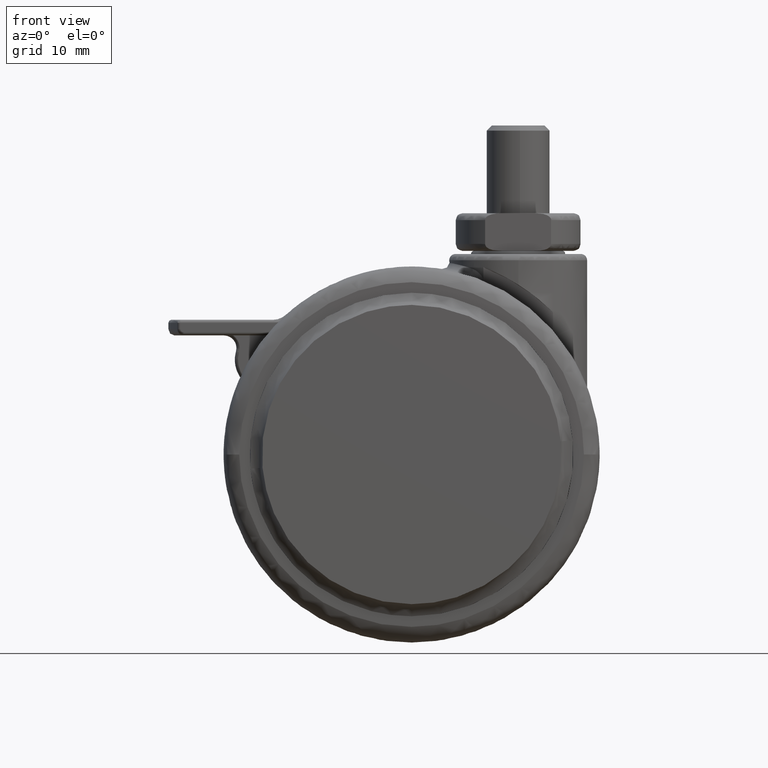
[diagram: clean part render]
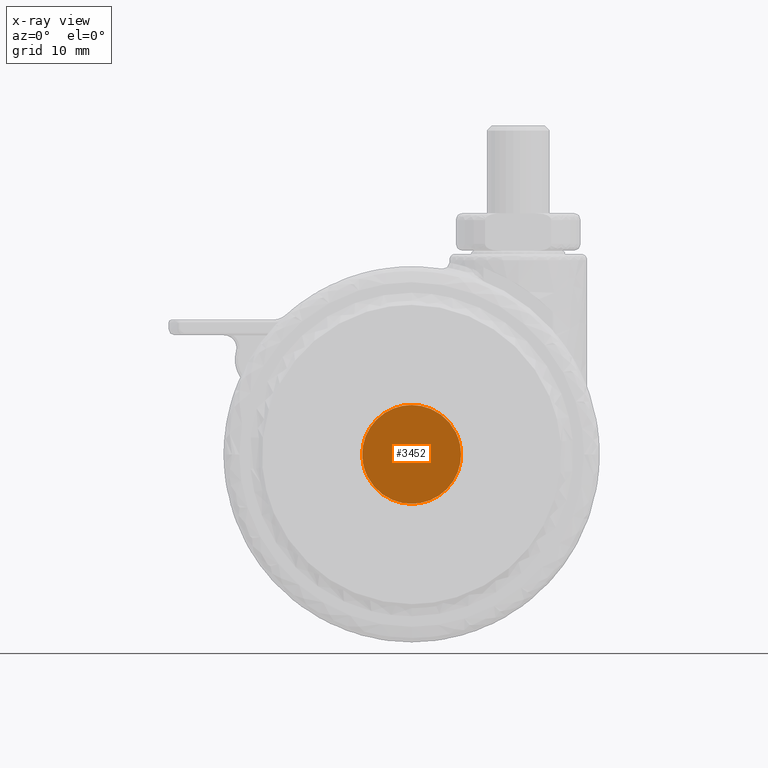
[diagram: x-ray — body ghosted, one internal face saturated and labeled with its STEP entity id]
A machine part, front view, then the same camera in x-ray: the body is ghosted and one INTERNAL B-rep face — a face not visible from any outside direction — is saturated and labeled: STEP entity #3452.
In plain terms, the highlighted face is a freeform B-spline surface patch.
Its self-contained STEP definition (entity closure, byte-faithful):
#3381=CARTESIAN_POINT('',(8.668936951341076,8.499999999999998,8.669374385220493));
#3382=CARTESIAN_POINT('',(8.668936951341076,8.499999999999998,-8.669374808042097));
#3383=CARTESIAN_POINT('',(-8.668936388123894,8.500000000000002,8.669374385220493));
#3384=CARTESIAN_POINT('',(-8.668936388123894,8.500000000000002,-8.669374808042097));
#3385=B_SPLINE_SURFACE_WITH_KNOTS('',1,1,((#3381,#3383),(#3382,#3384)),.UNSPECIFIED.,.F.,.F.,.U.,(2,2),(2,2),(0.0,17.338749193262590),(0.0,17.337873339464970),.UNSPECIFIED.);
#3386=CARTESIAN_POINT('',(1.040915E-015,8.500000000000000,-7.881966011250159));
#3387=VERTEX_POINT('',#3386);
#3388=CARTESIAN_POINT('',(7.045227729191132,8.500000000000000,3.534141271733713));
#3389=VERTEX_POINT('',#3388);
#3390=CARTESIAN_POINT('',(1.040915E-015,8.500000000000000,-7.881966011250159));
#3391=CARTESIAN_POINT('',(7.881966012688912,8.499999999999998,-7.881966010528427));
#3392=CARTESIAN_POINT('',(7.881966015020272,8.500000000000000,1.891226E-009));
#3393=CARTESIAN_POINT('',(7.881966015572239,8.500000000000000,1.866123123325072));
#3394=CARTESIAN_POINT('',(7.045227729191132,8.500000000000000,3.534141271733713));
#3402=(BOUNDED_CURVE()B_SPLINE_CURVE(2,(#3390,#3391,#3392,#3393,#3394),.UNSPECIFIED.,.F.,.U.)B_SPLINE_CURVE_WITH_KNOTS((3,2,3),(0.0,0.250000000000000,0.326230937887741),.UNSPECIFIED.)CURVE()GEOMETRIC_REPRESENTATION_ITEM()RATIONAL_B_SPLINE_CURVE((1.0,0.707106781186548,1.0,0.910689900915565,0.875845342759558))REPRESENTATION_ITEM(''));
#3403=EDGE_CURVE('',#3387,#3389,#3402,.T.);
#3404=ORIENTED_EDGE('',*,*,#3403,.T.);
#3405=CARTESIAN_POINT('',(1.040915E-015,8.500000000000000,7.881966011250159));
#3406=VERTEX_POINT('',#3405);
#3407=CARTESIAN_POINT('',(7.045227729191132,8.500000000000000,3.534141271733713));
#3408=CARTESIAN_POINT('',(4.864201441678153,8.500000000000004,7.881966012419653));
#3409=CARTESIAN_POINT('',(1.040915E-015,8.500000000000000,7.881966011250159));
#3417=(BOUNDED_CURVE()B_SPLINE_CURVE(2,(#3407,#3408,#3409),.UNSPECIFIED.,.F.,.U.)B_SPLINE_CURVE_WITH_KNOTS((3,3),(0.326230937887741,0.500000000000000),.UNSPECIFIED.)CURVE()GEOMETRIC_REPRESENTATION_ITEM()RATIONAL_B_SPLINE_CURVE((0.875845342759558,0.796416880270982,1.0))REPRESENTATION_ITEM(''));
#3418=EDGE_CURVE('',#3389,#3406,#3417,.T.);
#3419=ORIENTED_EDGE('',*,*,#3418,.T.);
#3420=CARTESIAN_POINT('',(-7.045227729191130,8.500000000000000,-3.534141271733715));
#3421=VERTEX_POINT('',#3420);
#3422=CARTESIAN_POINT('',(1.040915E-015,8.500000000000000,7.881966011250159));
#3423=CARTESIAN_POINT('',(-7.881966012688912,8.500000000000002,7.881966010528429));
#3424=CARTESIAN_POINT('',(-7.881966015020272,8.500000000000002,-1.891224E-009));
#3425=CARTESIAN_POINT('',(-7.881966015572242,8.500000000000002,-1.866123123325072));
#3426=CARTESIAN_POINT('',(-7.045227729191130,8.500000000000000,-3.534141271733715));
#3434=(BOUNDED_CURVE()B_SPLINE_CURVE(2,(#3422,#3423,#3424,#3425,#3426),.UNSPECIFIED.,.F.,.U.)B_SPLINE_CURVE_WITH_KNOTS((3,2,3),(0.500000000000000,0.750000000000000,0.826230937887741),.UNSPECIFIED.)CURVE()GEOMETRIC_REPRESENTATION_ITEM()RATIONAL_B_SPLINE_CURVE((1.0,0.707106781186548,1.0,0.910689900915565,0.875845342759558))REPRESENTATION_ITEM(''));
#3435=EDGE_CURVE('',#3406,#3421,#3434,.T.);
#3436=ORIENTED_EDGE('',*,*,#3435,.T.);
#3437=CARTESIAN_POINT('',(-7.045227729191130,8.500000000000000,-3.534141271733715));
#3438=CARTESIAN_POINT('',(-4.864201441678150,8.500000000000000,-7.881966012419653));
#3439=CARTESIAN_POINT('',(1.040915E-015,8.500000000000000,-7.881966011250159));
#3447=(BOUNDED_CURVE()B_SPLINE_CURVE(2,(#3437,#3438,#3439),.UNSPECIFIED.,.F.,.U.)B_SPLINE_CURVE_WITH_KNOTS((3,3),(0.826230937887741,1.0),.UNSPECIFIED.)CURVE()GEOMETRIC_REPRESENTATION_ITEM()RATIONAL_B_SPLINE_CURVE((0.875845342759558,0.796416880270983,1.0))REPRESENTATION_ITEM(''));
#3448=EDGE_CURVE('',#3421,#3387,#3447,.T.);
#3449=ORIENTED_EDGE('',*,*,#3448,.T.);
#3450=EDGE_LOOP('',(#3404,#3419,#3436,#3449));
#3451=FACE_OUTER_BOUND('',#3450,.T.);
#3452=ADVANCED_FACE('',(#3451),#3385,.F.);